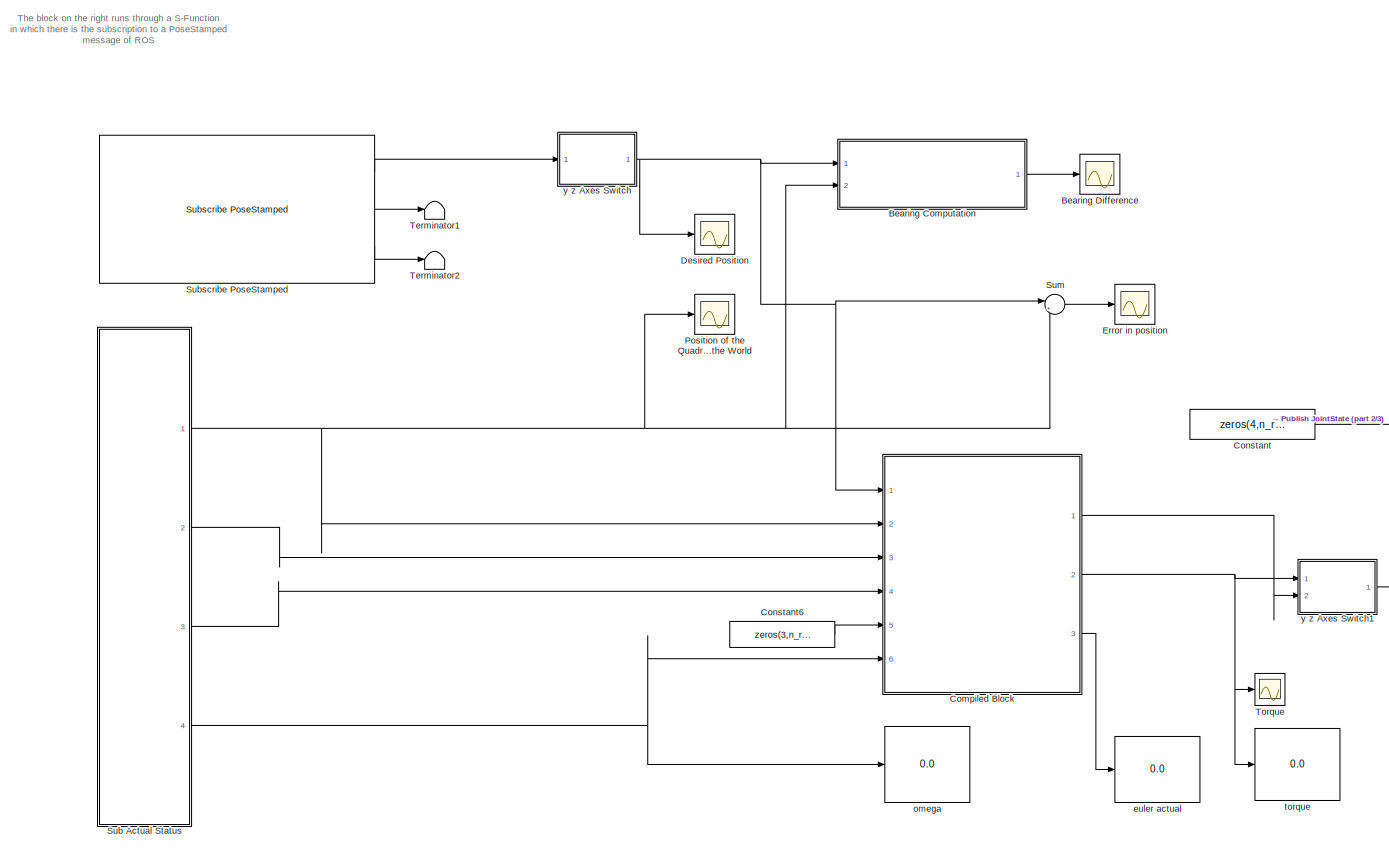
[diagram: root canvas - part 1/3, most of the canvas]
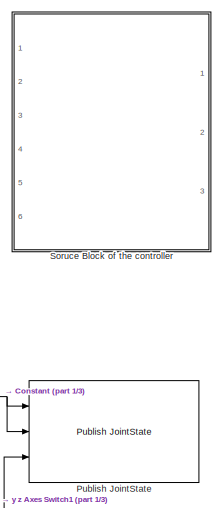
[diagram: root canvas - part 2/3, top right region]
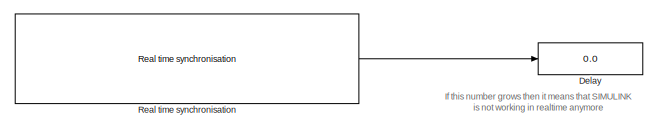
[diagram: root canvas - part 3/3, bottom left region]
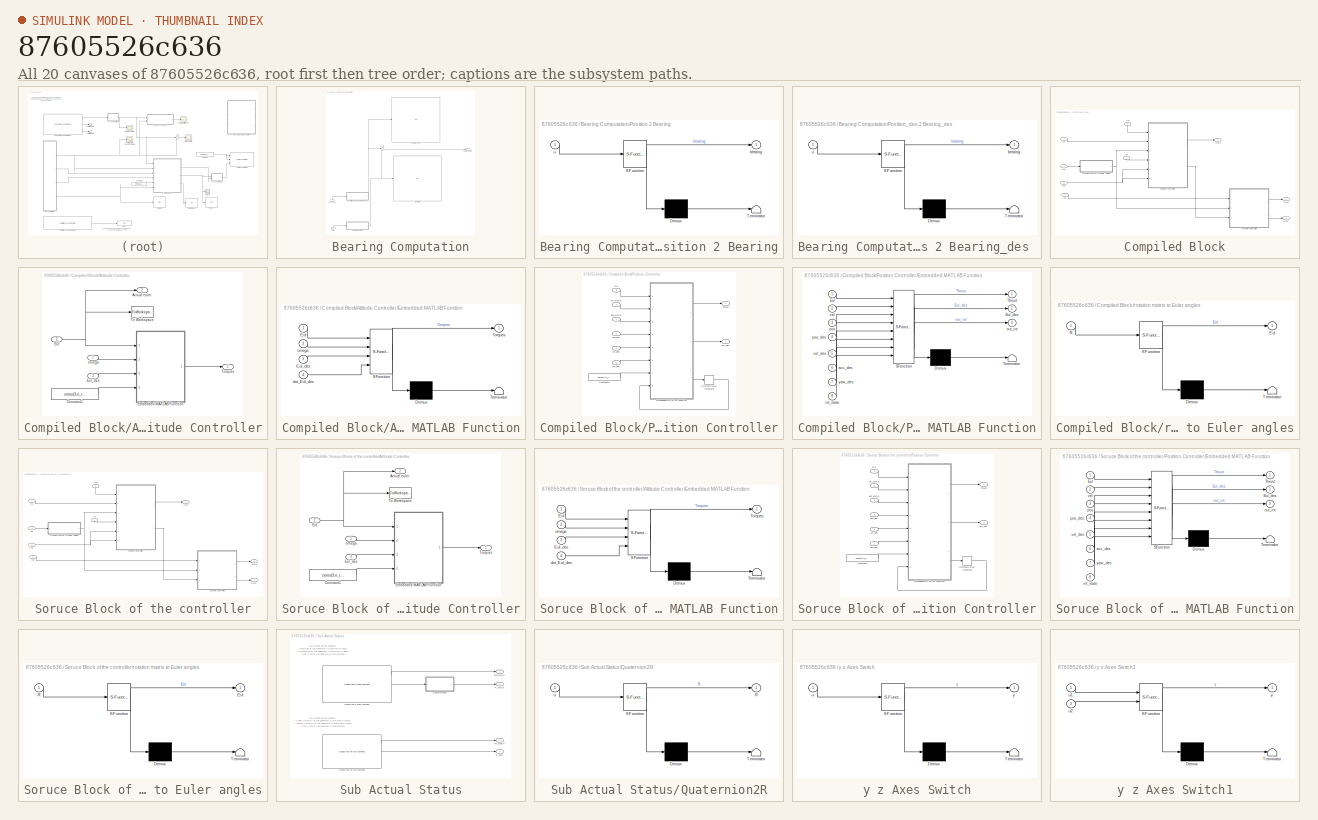
[diagram: thumbnail index - all 20 canvases of the model, root first then tree order]
MODEL slx_87605526c636
KIND model
BLOCK [SubSystem] Bearing Computation
  Ports = [2, 1]
  RequestExecContextInheritance = off
BLOCK [Display] Bearing Computation/Bearing
  Decimation = 1
  Ports = [1]
BLOCK [Outport] Bearing Computation/Bearing_Error
  IconDisplay = Port number
BLOCK [Display] Bearing Computation/Bearing_des 
  Decimation = 1
  Ports = [1]
BLOCK [Inport] Bearing Computation/Pos
  IconDisplay = Port number
  Port = 2
BLOCK [Inport] Bearing Computation/Pos_des
  IconDisplay = Port number
BLOCK [SubSystem] Bearing Computation/Position 2 Bearing
  ErrorFcn = Stateflow.Translate.translate
  PermitHierarchicalResolution = ExplicitOnly
  Ports = [1, 1]
  RequestExecContextInheritance = off
  SFBlockType = MATLAB Function
  TreatAsAtomicUnit = on
BLOCK [Demux] Bearing Computation/Position 2 Bearing/ Demux 
  Outputs = 1
  Ports = [1, 1]
BLOCK [S-Function] Bearing Computation/Position 2 Bearing/ SFunction 
  EnableBusSupport = on
  FunctionName = sf_sfun
  Parameters = n_robots
  PortCounts = [1 2]
  Ports = [1, 2]
  Tag = Stateflow S-Function test_pos_ctrl_target 11
BLOCK [Terminator] Bearing Computation/Position 2 Bearing/ Terminator 
BLOCK [Outport] Bearing Computation/Position 2 Bearing/bearing
  IconDisplay = Port number
BLOCK [Inport] Bearing Computation/Position 2 Bearing/u
  IconDisplay = Port number
BLOCK [SubSystem] Bearing Computation/Position_des 2 Bearing_des 
  ErrorFcn = Stateflow.Translate.translate
  PermitHierarchicalResolution = ExplicitOnly
  Ports = [1, 1]
  RequestExecContextInheritance = off
  SFBlockType = MATLAB Function
  TreatAsAtomicUnit = on
BLOCK [Demux] Bearing Computation/Position_des 2 Bearing_des / Demux 
  Outputs = 1
  Ports = [1, 1]
BLOCK [S-Function] Bearing Computation/Position_des 2 Bearing_des / SFunction 
  EnableBusSupport = on
  FunctionName = sf_sfun
  Parameters = n_robots
  PortCounts = [1 2]
  Ports = [1, 2]
  Tag = Stateflow S-Function test_pos_ctrl_target 10
BLOCK [Terminator] Bearing Computation/Position_des 2 Bearing_des / Terminator 
BLOCK [Outport] Bearing Computation/Position_des 2 Bearing_des /bearing
  IconDisplay = Port number
BLOCK [Inport] Bearing Computation/Position_des 2 Bearing_des /u
  IconDisplay = Port number
BLOCK [Sum] Bearing Computation/Sum1
  IconShape = round
  InputSameDT = off
  Inputs = |+-
  OutDataTypeStr = Inherit: Inherit via internal rule
  Ports = [2, 1]
  SaturateOnIntegerOverflow = off
BLOCK [Scope] Bearing Difference
  DataFormat = StructureWithTime
  Floating = off
  LimitDataPoints = off
  NumInputPorts = 1
  Ports = [1]
  SampleTime = 0
  SaveName = ScopeData4
  ShowLegends = off
  TimeRange = 10000
  YMax = 0.8
  YMin = -0.8
  ZoomMode = xonly
BLOCK [SubSystem] Compiled Block
  Ports = [6, 3]
  RequestExecContextInheritance = off
BLOCK [SubSystem] Compiled Block/Attitude Controller
  Ports = [3, 2]
  RequestExecContextInheritance = off
  SystemSampleTime = IMU_time_step
BLOCK [Outport] Compiled Block/Attitude Controller/Actual euler
  IconDisplay = Port number
  Port = 2
BLOCK [Constant] Compiled Block/Attitude Controller/Constant1
  Value = zeros(3,n_robots)
BLOCK [SubSystem] Compiled Block/Attitude Controller/Embedded MATLAB Function
  ErrorFcn = Stateflow.Translate.translate
  PermitHierarchicalResolution = ExplicitOnly
  Ports = [4, 1]
  RequestExecContextInheritance = off
  SFBlockType = MATLAB Function
  TreatAsAtomicUnit = on
BLOCK [Demux] Compiled Block/Attitude Controller/Embedded MATLAB Function/ Demux 
  Outputs = 1
  Ports = [1, 1]
BLOCK [S-Function] Compiled Block/Attitude Controller/Embedded MATLAB Function/ SFunction 
  EnableBusSupport = on
  FunctionName = sf_sfun
  Parameters = KDP,KDR,KDY,KPP,KPR,KPY,n_robots
  PortCounts = [4 2]
  Ports = [4, 2]
  Tag = Stateflow S-Function test_pos_ctrl_target 5
BLOCK [Terminator] Compiled Block/Attitude Controller/Embedded MATLAB Function/ Terminator 
BLOCK [Inport] Compiled Block/Attitude Controller/Embedded MATLAB Function/Eul
  IconDisplay = Port number
BLOCK [Inport] Compiled Block/Attitude Controller/Embedded MATLAB Function/Eul_des
  IconDisplay = Port number
  Port = 3
BLOCK [Outport] Compiled Block/Attitude Controller/Embedded MATLAB Function/Torques
  IconDisplay = Port number
BLOCK [Inport] Compiled Block/Attitude Controller/Embedded MATLAB Function/dot_Eul_des
  IconDisplay = Port number
  Port = 4
BLOCK [Inport] Compiled Block/Attitude Controller/Embedded MATLAB Function/omega
  IconDisplay = Port number
  Port = 2
BLOCK [Inport] Compiled Block/Attitude Controller/Eul
  IconDisplay = Port number
  Port = 2
BLOCK [Inport] Compiled Block/Attitude Controller/Eul_des
  IconDisplay = Port number
  Port = 3
BLOCK [ToWorkspace] Compiled Block/Attitude Controller/To Workspace
  Commented = on
  MaxDataPoints = inf
  Ports = [1]
  SampleTime = -1
  SaveFormat = Structure With Time
  VariableName = Eul
BLOCK [Outport] Compiled Block/Attitude Controller/Torques
  IconDisplay = Port number
BLOCK [Inport] Compiled Block/Attitude Controller/omega
  IconDisplay = Port number
BLOCK [Inport] Compiled Block/In1
  IconDisplay = Port number
BLOCK [Inport] Compiled Block/In2
  IconDisplay = Port number
  Port = 2
BLOCK [Inport] Compiled Block/In3
  IconDisplay = Port number
  Port = 3
BLOCK [Inport] Compiled Block/In4
  IconDisplay = Port number
  Port = 4
BLOCK [Inport] Compiled Block/In5
  IconDisplay = Port number
  Port = 5
BLOCK [Inport] Compiled Block/In6
  IconDisplay = Port number
  Port = 6
BLOCK [Outport] Compiled Block/Out1
  IconDisplay = Port number
BLOCK [Outport] Compiled Block/Out2
  IconDisplay = Port number
  Port = 2
BLOCK [Outport] Compiled Block/Out3
  IconDisplay = Port number
  Port = 3
BLOCK [SubSystem] Compiled Block/Position Controller
  Ports = [6, 2]
  RequestExecContextInheritance = off
  SystemSampleTime = VICON_time_step
BLOCK [Constant] Compiled Block/Position Controller/Constant3
  Value = zeros(1,n_robots)
BLOCK [DiscreteIntegrator] Compiled Block/Position Controller/Discrete-Time Integrator
  ICPrevOutput = DiscIntNeverNeededParam
  ICPrevScaledInput = DiscIntNeverNeededParam
  InitialCondition = zeros(3,n_robots)
  OutDataTypeStr = Inherit: Inherit via back propagation
  Ports = [1, 1]
  SampleTime = -1
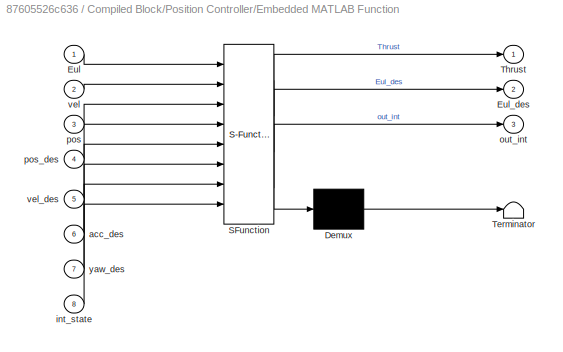
BLOCK [SubSystem] Compiled Block/Position Controller/Embedded MATLAB Function
  ErrorFcn = Stateflow.Translate.translate
  PermitHierarchicalResolution = ExplicitOnly
  Ports = [8, 3]
  RequestExecContextInheritance = off
  SFBlockType = MATLAB Function
  TreatAsAtomicUnit = on
BLOCK [Demux] Compiled Block/Position Controller/Embedded MATLAB Function/ Demux 
  Outputs = 1
  Ports = [1, 1]
BLOCK [S-Function] Compiled Block/Position Controller/Embedded MATLAB Function/ SFunction 
  EnableBusSupport = on
  FunctionName = sf_sfun
  Parameters = g,kd,ki,kp,m0,max_pitch,max_roll,n_robots
  PortCounts = [8 4]
  Ports = [8, 4]
  Tag = Stateflow S-Function test_pos_ctrl_target 8
BLOCK [Terminator] Compiled Block/Position Controller/Embedded MATLAB Function/ Terminator 
BLOCK [Inport] Compiled Block/Position Controller/Embedded MATLAB Function/Eul
  IconDisplay = Port number
BLOCK [Outport] Compiled Block/Position Controller/Embedded MATLAB Function/Eul_des
  IconDisplay = Port number
  Port = 2
BLOCK [Outport] Compiled Block/Position Controller/Embedded MATLAB Function/Thrust
  IconDisplay = Port number
BLOCK [Inport] Compiled Block/Position Controller/Embedded MATLAB Function/acc_des
  IconDisplay = Port number
  Port = 6
BLOCK [Inport] Compiled Block/Position Controller/Embedded MATLAB Function/int_state
  IconDisplay = Port number
  Port = 8
BLOCK [Outport] Compiled Block/Position Controller/Embedded MATLAB Function/out_int
  IconDisplay = Port number
  Port = 3
BLOCK [Inport] Compiled Block/Position Controller/Embedded MATLAB Function/pos
  IconDisplay = Port number
  Port = 3
BLOCK [Inport] Compiled Block/Position Controller/Embedded MATLAB Function/pos_des
  IconDisplay = Port number
  Port = 4
BLOCK [Inport] Compiled Block/Position Controller/Embedded MATLAB Function/vel
  IconDisplay = Port number
  Port = 2
BLOCK [Inport] Compiled Block/Position Controller/Embedded MATLAB Function/vel_des
  IconDisplay = Port number
  Port = 5
BLOCK [Inport] Compiled Block/Position Controller/Embedded MATLAB Function/yaw_des
  IconDisplay = Port number
  Port = 7
BLOCK [Inport] Compiled Block/Position Controller/Eul
  IconDisplay = Port number
  Port = 3
BLOCK [Outport] Compiled Block/Position Controller/Thrust
  IconDisplay = Port number
BLOCK [Inport] Compiled Block/Position Controller/acc_des
  IconDisplay = Port number
  Port = 6
BLOCK [Outport] Compiled Block/Position Controller/eul_des
  IconDisplay = Port number
  Port = 2
BLOCK [Inport] Compiled Block/Position Controller/pos_des
  IconDisplay = Port number
  Port = 4
BLOCK [Inport] Compiled Block/Position Controller/pos_world
  IconDisplay = Port number
BLOCK [Inport] Compiled Block/Position Controller/vel_des
  IconDisplay = Port number
  Port = 5
BLOCK [Inport] Compiled Block/Position Controller/vel_world
  IconDisplay = Port number
  Port = 2
BLOCK [SubSystem] Compiled Block/rotation matrix to Euler angles
  ErrorFcn = Stateflow.Translate.translate
  PermitHierarchicalResolution = ExplicitOnly
  Ports = [1, 1]
  RequestExecContextInheritance = off
  SFBlockType = MATLAB Function
  TreatAsAtomicUnit = on
BLOCK [Demux] Compiled Block/rotation matrix to Euler angles/ Demux 
  Outputs = 1
  Ports = [1, 1]
BLOCK [S-Function] Compiled Block/rotation matrix to Euler angles/ SFunction 
  EnableBusSupport = on
  FunctionName = sf_sfun
  Parameters = n_robots
  PortCounts = [1 2]
  Ports = [1, 2]
  Tag = Stateflow S-Function test_pos_ctrl_target 9
BLOCK [Terminator] Compiled Block/rotation matrix to Euler angles/ Terminator 
BLOCK [Outport] Compiled Block/rotation matrix to Euler angles/Eul
  IconDisplay = Port number
BLOCK [Inport] Compiled Block/rotation matrix to Euler angles/R
  IconDisplay = Port number
BLOCK [Constant] Constant
  Value = zeros(4,n_robots)
  VectorParams1D = off
BLOCK [Constant] Constant6
  Value = zeros(3,n_robots)
BLOCK [Display] Delay
  Decimation = 1
  Ports = [1]
BLOCK [Scope] Desired Position
  DataFormat = StructureWithTime
  Floating = off
  LimitDataPoints = off
  NumInputPorts = 1
  Ports = [1]
  SampleTime = 0
  SaveName = ScopeData3
  ShowLegends = off
  TimeRange = 10000
  YMax = 7.5
  YMin = -4
  ZoomMode = xonly
BLOCK [Scope] Error in position
  Commented = on
  DataFormat = StructureWithTime
  Floating = off
  NumInputPorts = 1
  Ports = [1]
  SampleTime = 0
  SaveToWorkspace = on
  ShowLegends = off
  TimeRange = 10
  YMax = 7.5
  YMin = -4
  ZoomMode = xonly
BLOCK [Scope] Position of the Quadrotor in the World 
  DataFormat = StructureWithTime
  Floating = off
  NumInputPorts = 1
  Ports = [1]
  SampleTime = 0
  SaveName = ScopeData2
  SaveToWorkspace = on
  ShowLegends = off
  TimeRange = 10
  YMax = 7.5
  YMin = -4
  ZoomMode = xonly
BLOCK [Reference] Publish JointState  REF=sensor_msgs/Publish JointState
  Ports = [3]
  SourceBlock = sensor_msgs/Publish JointState
  SourceType = Publisher JointState
  list_of_robot_ids = char([0:n_robots-1])
  n_dofs = char(4)
  stepTime = basic_time_step
  topic_postfix = ''
  topic_prefix = '/command/quadrotor_'
BLOCK [Reference] Real time synchronisation  REF=rt_sync/Real time synchronisation
  Ports = [0, 1]
  ShowEveryNumCycles = 1/basic_time_step
  SourceBlock = rt_sync/Real time synchronisation
  minShownDelay = 0.5
  slowDownFactor = 1
  stepTime = basic_time_step
BLOCK [SubSystem] Soruce Block of the controller
  Commented = on
  Ports = [6, 3]
  RequestExecContextInheritance = off
BLOCK [SubSystem] Soruce Block of the controller/Attitude Controller
  Ports = [3, 2]
  RequestExecContextInheritance = off
  SystemSampleTime = IMU_time_step
BLOCK [Outport] Soruce Block of the controller/Attitude Controller/Actual euler
  IconDisplay = Port number
  Port = 2
BLOCK [Constant] Soruce Block of the controller/Attitude Controller/Constant1
  Value = zeros(3,n_robots)
BLOCK [SubSystem] Soruce Block of the controller/Attitude Controller/Embedded MATLAB Function
  ErrorFcn = Stateflow.Translate.translate
  PermitHierarchicalResolution = ExplicitOnly
  Ports = [4, 1]
  RequestExecContextInheritance = off
  SFBlockType = MATLAB Function
  TreatAsAtomicUnit = on
BLOCK [Demux] Soruce Block of the controller/Attitude Controller/Embedded MATLAB Function/ Demux 
  Outputs = 1
  Ports = [1, 1]
BLOCK [S-Function] Soruce Block of the controller/Attitude Controller/Embedded MATLAB Function/ SFunction 
  EnableBusSupport = on
  FunctionName = sf_sfun
  Parameters = KDP,KDR,KDY,KPP,KPR,KPY,n_robots
  PortCounts = [4 2]
  Ports = [4, 2]
  Tag = Stateflow S-Function test_pos_ctrl_target 1
BLOCK [Terminator] Soruce Block of the controller/Attitude Controller/Embedded MATLAB Function/ Terminator 
BLOCK [Inport] Soruce Block of the controller/Attitude Controller/Embedded MATLAB Function/Eul
  IconDisplay = Port number
BLOCK [Inport] Soruce Block of the controller/Attitude Controller/Embedded MATLAB Function/Eul_des
  IconDisplay = Port number
  Port = 3
BLOCK [Outport] Soruce Block of the controller/Attitude Controller/Embedded MATLAB Function/Torques
  IconDisplay = Port number
BLOCK [Inport] Soruce Block of the controller/Attitude Controller/Embedded MATLAB Function/dot_Eul_des
  IconDisplay = Port number
  Port = 4
BLOCK [Inport] Soruce Block of the controller/Attitude Controller/Embedded MATLAB Function/omega
  IconDisplay = Port number
  Port = 2
BLOCK [Inport] Soruce Block of the controller/Attitude Controller/Eul
  IconDisplay = Port number
  Port = 2
BLOCK [Inport] Soruce Block of the controller/Attitude Controller/Eul_des
  IconDisplay = Port number
  Port = 3
BLOCK [ToWorkspace] Soruce Block of the controller/Attitude Controller/To Workspace
  MaxDataPoints = inf
  Ports = [1]
  SampleTime = -1
  SaveFormat = Structure With Time
  VariableName = Eul
BLOCK [Outport] Soruce Block of the controller/Attitude Controller/Torques
  IconDisplay = Port number
BLOCK [Inport] Soruce Block of the controller/Attitude Controller/omega
  IconDisplay = Port number
BLOCK [Inport] Soruce Block of the controller/In1
  IconDisplay = Port number
BLOCK [Inport] Soruce Block of the controller/In2
  IconDisplay = Port number
  Port = 2
BLOCK [Inport] Soruce Block of the controller/In3
  IconDisplay = Port number
  Port = 3
BLOCK [Inport] Soruce Block of the controller/In4
  IconDisplay = Port number
  Port = 4
BLOCK [Inport] Soruce Block of the controller/In5
  IconDisplay = Port number
  Port = 5
BLOCK [Inport] Soruce Block of the controller/In6
  IconDisplay = Port number
  Port = 6
BLOCK [Outport] Soruce Block of the controller/Out1
  IconDisplay = Port number
BLOCK [Outport] Soruce Block of the controller/Out2
  IconDisplay = Port number
  Port = 2
BLOCK [Outport] Soruce Block of the controller/Out3
  IconDisplay = Port number
  Port = 3
BLOCK [SubSystem] Soruce Block of the controller/Position Controller
  Ports = [6, 2]
  RequestExecContextInheritance = off
  SystemSampleTime = VICON_time_step
BLOCK [Constant] Soruce Block of the controller/Position Controller/Constant3
  Value = zeros(1,n_robots)
BLOCK [DiscreteIntegrator] Soruce Block of the controller/Position Controller/Discrete-Time Integrator
  ICPrevOutput = DiscIntNeverNeededParam
  ICPrevScaledInput = DiscIntNeverNeededParam
  InitialCondition = zeros(3,n_robots)
  OutDataTypeStr = Inherit: Inherit via back propagation
  Ports = [1, 1]
  SampleTime = -1
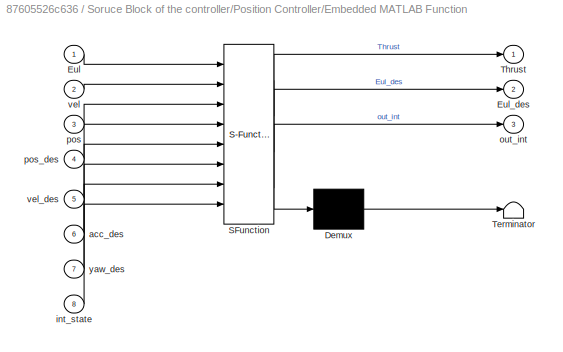
BLOCK [SubSystem] Soruce Block of the controller/Position Controller/Embedded MATLAB Function
  ErrorFcn = Stateflow.Translate.translate
  PermitHierarchicalResolution = ExplicitOnly
  Ports = [8, 3]
  RequestExecContextInheritance = off
  SFBlockType = MATLAB Function
  TreatAsAtomicUnit = on
BLOCK [Demux] Soruce Block of the controller/Position Controller/Embedded MATLAB Function/ Demux 
  Outputs = 1
  Ports = [1, 1]
BLOCK [S-Function] Soruce Block of the controller/Position Controller/Embedded MATLAB Function/ SFunction 
  EnableBusSupport = on
  FunctionName = sf_sfun
  Parameters = g,kd,ki,kp,m0,max_pitch,max_roll,n_robots
  PortCounts = [8 4]
  Ports = [8, 4]
  Tag = Stateflow S-Function test_pos_ctrl_target 3
BLOCK [Terminator] Soruce Block of the controller/Position Controller/Embedded MATLAB Function/ Terminator 
BLOCK [Inport] Soruce Block of the controller/Position Controller/Embedded MATLAB Function/Eul
  IconDisplay = Port number
BLOCK [Outport] Soruce Block of the controller/Position Controller/Embedded MATLAB Function/Eul_des
  IconDisplay = Port number
  Port = 2
BLOCK [Outport] Soruce Block of the controller/Position Controller/Embedded MATLAB Function/Thrust
  IconDisplay = Port number
BLOCK [Inport] Soruce Block of the controller/Position Controller/Embedded MATLAB Function/acc_des
  IconDisplay = Port number
  Port = 6
BLOCK [Inport] Soruce Block of the controller/Position Controller/Embedded MATLAB Function/int_state
  IconDisplay = Port number
  Port = 8
BLOCK [Outport] Soruce Block of the controller/Position Controller/Embedded MATLAB Function/out_int
  IconDisplay = Port number
  Port = 3
BLOCK [Inport] Soruce Block of the controller/Position Controller/Embedded MATLAB Function/pos
  IconDisplay = Port number
  Port = 3
BLOCK [Inport] Soruce Block of the controller/Position Controller/Embedded MATLAB Function/pos_des
  IconDisplay = Port number
  Port = 4
BLOCK [Inport] Soruce Block of the controller/Position Controller/Embedded MATLAB Function/vel
  IconDisplay = Port number
  Port = 2
BLOCK [Inport] Soruce Block of the controller/Position Controller/Embedded MATLAB Function/vel_des
  IconDisplay = Port number
  Port = 5
BLOCK [Inport] Soruce Block of the controller/Position Controller/Embedded MATLAB Function/yaw_des
  IconDisplay = Port number
  Port = 7
BLOCK [Inport] Soruce Block of the controller/Position Controller/Eul
  IconDisplay = Port number
  Port = 3
BLOCK [Outport] Soruce Block of the controller/Position Controller/Thrust
  IconDisplay = Port number
BLOCK [Inport] Soruce Block of the controller/Position Controller/acc_des
  IconDisplay = Port number
  Port = 6
BLOCK [Outport] Soruce Block of the controller/Position Controller/eul_des
  IconDisplay = Port number
  Port = 2
BLOCK [Inport] Soruce Block of the controller/Position Controller/pos_des
  IconDisplay = Port number
  Port = 4
BLOCK [Inport] Soruce Block of the controller/Position Controller/pos_world
  IconDisplay = Port number
BLOCK [Inport] Soruce Block of the controller/Position Controller/vel_des
  IconDisplay = Port number
  Port = 5
BLOCK [Inport] Soruce Block of the controller/Position Controller/vel_world
  IconDisplay = Port number
  Port = 2
BLOCK [SubSystem] Soruce Block of the controller/rotation matrix to Euler angles
  ErrorFcn = Stateflow.Translate.translate
  PermitHierarchicalResolution = ExplicitOnly
  Ports = [1, 1]
  RequestExecContextInheritance = off
  SFBlockType = MATLAB Function
  TreatAsAtomicUnit = on
BLOCK [Demux] Soruce Block of the controller/rotation matrix to Euler angles/ Demux 
  Outputs = 1
  Ports = [1, 1]
BLOCK [S-Function] Soruce Block of the controller/rotation matrix to Euler angles/ SFunction 
  EnableBusSupport = on
  FunctionName = sf_sfun
  Parameters = n_robots
  PortCounts = [1 2]
  Ports = [1, 2]
  Tag = Stateflow S-Function test_pos_ctrl_target 4
BLOCK [Terminator] Soruce Block of the controller/rotation matrix to Euler angles/ Terminator 
BLOCK [Outport] Soruce Block of the controller/rotation matrix to Euler angles/Eul
  IconDisplay = Port number
BLOCK [Inport] Soruce Block of the controller/rotation matrix to Euler angles/R
  IconDisplay = Port number
BLOCK [SubSystem] Sub Actual Status
  Ports = [0, 4]
  RequestExecContextInheritance = off
BLOCK [SubSystem] Sub Actual Status/Quaternion2R
  ErrorFcn = Stateflow.Translate.translate
  PermitHierarchicalResolution = ExplicitOnly
  Ports = [1, 1]
  RequestExecContextInheritance = off
  SFBlockType = MATLAB Function
  TreatAsAtomicUnit = on
BLOCK [Demux] Sub Actual Status/Quaternion2R/ Demux 
  Outputs = 1
  Ports = [1, 1]
BLOCK [S-Function] Sub Actual Status/Quaternion2R/ SFunction 
  EnableBusSupport = on
  FunctionName = sf_sfun
  Parameters = n_robots
  PortCounts = [1 2]
  Ports = [1, 2]
  Tag = Stateflow S-Function test_pos_ctrl_target 2
BLOCK [Terminator] Sub Actual Status/Quaternion2R/ Terminator 
BLOCK [Outport] Sub Actual Status/Quaternion2R/R
  IconDisplay = Port number
BLOCK [Inport] Sub Actual Status/Quaternion2R/u
  IconDisplay = Port number
BLOCK [Outport] Sub Actual Status/R_world 
  IconDisplay = Port number
  Port = 3
BLOCK [Reference] Sub Actual Status/Subscribe PoseStamped  REF=geometry_msgs/Subscribe PoseStamped
  Ports = [0, 3]
  SourceBlock = geometry_msgs/Subscribe PoseStamped
  SourceType = Subscriber PoseStamped
  list_of_robot_ids = char([0:n_robots-1])
  stepTime = basic_time_step
  topic_postfix = ''
  topic_prefix = '/vrep/pose/quadrotor_'
BLOCK [Reference] Sub Actual Status/Subscribe TwistStamped  REF=geometry_msgs/Subscribe TwistStamped
  Ports = [0, 3]
  SourceBlock = geometry_msgs/Subscribe TwistStamped
  SourceType = Subscriber TwistStamped
  list_of_robot_ids = char([0:n_robots-1])
  stepTime = basic_time_step
  topic_postfix = ''
  topic_prefix = '/vrep/twist/quadrotor_'
BLOCK [Outport] Sub Actual Status/pos_world
  IconDisplay = Port number
BLOCK [Outport] Sub Actual Status/vel_world
  IconDisplay = Port number
  Port = 2
BLOCK [Outport] Sub Actual Status/w_body
  IconDisplay = Port number
  Port = 4
BLOCK [Reference] Subscribe PoseStamped  REF=geometry_msgs/Subscribe PoseStamped
  Ports = [0, 3]
  SourceBlock = geometry_msgs/Subscribe PoseStamped
  SourceType = Subscriber PoseStamped
  list_of_robot_ids = char([0:n_robots-1])
  stepTime = basic_time_step
  topic_postfix = '/pose'
  topic_prefix = '/vrep/Quadricopter_target_'
BLOCK [Sum] Sum
  Commented = on
  IconShape = round
  InputSameDT = off
  Inputs = |+-
  OutDataTypeStr = Inherit: Inherit via internal rule
  Ports = [2, 1]
  SaturateOnIntegerOverflow = off
BLOCK [Terminator] Terminator1
BLOCK [Terminator] Terminator2
BLOCK [Scope] Torque
  DataFormat = StructureWithTime
  Floating = off
  NumInputPorts = 1
  Ports = [1]
  SampleTime = 0
  SaveName = ScopeData1
  ShowLegends = off
BLOCK [Display] euler actual
  Commented = on
  Decimation = 1
  Ports = [1]
BLOCK [Display] omega
  Commented = on
  Decimation = 1
  Ports = [1]
BLOCK [Display] torque 
  Commented = on
  Decimation = 1
  Ports = [1]
BLOCK [SubSystem] y z Axes Switch
  ErrorFcn = Stateflow.Translate.translate
  PermitHierarchicalResolution = ExplicitOnly
  Ports = [1, 1]
  RequestExecContextInheritance = off
  SFBlockType = MATLAB Function
  TreatAsAtomicUnit = on
BLOCK [Demux] y z Axes Switch/ Demux 
  Outputs = 1
  Ports = [1, 1]
BLOCK [S-Function] y z Axes Switch/ SFunction 
  EnableBusSupport = on
  FunctionName = sf_sfun
  Parameters = n_robots
  PortCounts = [1 2]
  Ports = [1, 2]
  Tag = Stateflow S-Function test_pos_ctrl_target 6
BLOCK [Terminator] y z Axes Switch/ Terminator 
BLOCK [Inport] y z Axes Switch/u
  IconDisplay = Port number
BLOCK [Outport] y z Axes Switch/y
  IconDisplay = Port number
BLOCK [SubSystem] y z Axes Switch1
  ErrorFcn = Stateflow.Translate.translate
  PermitHierarchicalResolution = ExplicitOnly
  Ports = [2, 1]
  RequestExecContextInheritance = off
  SFBlockType = MATLAB Function
  TreatAsAtomicUnit = on
BLOCK [Demux] y z Axes Switch1/ Demux 
  Outputs = 1
  Ports = [1, 1]
BLOCK [S-Function] y z Axes Switch1/ SFunction 
  EnableBusSupport = on
  FunctionName = sf_sfun
  Parameters = n_robots
  PortCounts = [2 2]
  Ports = [2, 2]
  Tag = Stateflow S-Function test_pos_ctrl_target 7
BLOCK [Terminator] y z Axes Switch1/ Terminator 
BLOCK [Inport] y z Axes Switch1/u1
  IconDisplay = Port number
BLOCK [Inport] y z Axes Switch1/u2
  IconDisplay = Port number
  Port = 2
BLOCK [Outport] y z Axes Switch1/y
  IconDisplay = Port number
ANNOTATION (root): If this number grows then it means that SIMULINK is not working in realtime anymore
ANNOTATION (root): The block on the right runs through a S-Function in which there is the subscription to a PoseStamped message of ROS
ANNOTATION Sub Actual Status: This blocks has as outputs: - Linear Velocity of the quadrotor in the world frame - Angular Velocity of the quadrotor in the world frame - Sent time of the previous 2 informations
ANNOTATION Sub Actual Status: This blocks has as outputs: - Position of the quadrotor in the world frame - Orientation of the quadrotor in the world frame - Sent time of the previous 2 informations
LINE Bearing Computation/Pos:1 -> Bearing Computation/Position 2 Bearing:1
LINE Bearing Computation/Pos_des:1 -> Bearing Computation/Position_des 2 Bearing_des :1
NET Bearing Computation/Position 2 Bearing:1 -> Bearing Computation/Bearing:1, Bearing Computation/Sum1:2
NET Bearing Computation/Position_des 2 Bearing_des :1 -> Bearing Computation/Bearing_des :1, Bearing Computation/Sum1:1
LINE Bearing Computation/Sum1:1 -> Bearing Computation/Bearing_Error:1
LINE Bearing Computation:1 -> Bearing Difference:1
LINE Compiled Block/Attitude Controller/Constant1:1 -> Compiled Block/Attitude Controller/Embedded MATLAB Function:4
LINE Compiled Block/Attitude Controller/Embedded MATLAB Function:1 -> Compiled Block/Attitude Controller/Torques:1
NET Compiled Block/Attitude Controller/Eul:1 -> Compiled Block/Attitude Controller/Actual euler:1, Compiled Block/Attitude Controller/Embedded MATLAB Function:1, Compiled Block/Attitude Controller/To Workspace:1
LINE Compiled Block/Attitude Controller/Eul_des:1 -> Compiled Block/Attitude Controller/Embedded MATLAB Function:3
LINE Compiled Block/Attitude Controller/omega:1 -> Compiled Block/Attitude Controller/Embedded MATLAB Function:2
LINE Compiled Block/Attitude Controller:1 -> Compiled Block/Out2:1
LINE Compiled Block/Attitude Controller:2 -> Compiled Block/Out3:1
LINE Compiled Block/In1:1 -> Compiled Block/Position Controller:4
LINE Compiled Block/In2:1 -> Compiled Block/Position Controller:1
LINE Compiled Block/In3:1 -> Compiled Block/Position Controller:2
LINE Compiled Block/In4:1 -> Compiled Block/rotation matrix to Euler angles:1
NET Compiled Block/In5:1 -> Compiled Block/Position Controller:5, Compiled Block/Position Controller:6
LINE Compiled Block/In6:1 -> Compiled Block/Attitude Controller:1
LINE Compiled Block/Position Controller/Constant3:1 -> Compiled Block/Position Controller/Embedded MATLAB Function:7
LINE Compiled Block/Position Controller/Discrete-Time Integrator:1 -> Compiled Block/Position Controller/Embedded MATLAB Function:8
LINE Compiled Block/Position Controller/Embedded MATLAB Function:1 -> Compiled Block/Position Controller/Thrust:1
LINE Compiled Block/Position Controller/Embedded MATLAB Function:2 -> Compiled Block/Position Controller/eul_des:1
LINE Compiled Block/Position Controller/Embedded MATLAB Function:3 -> Compiled Block/Position Controller/Discrete-Time Integrator:1
LINE Compiled Block/Position Controller/Eul:1 -> Compiled Block/Position Controller/Embedded MATLAB Function:1
LINE Compiled Block/Position Controller/acc_des:1 -> Compiled Block/Position Controller/Embedded MATLAB Function:6
LINE Compiled Block/Position Controller/pos_des:1 -> Compiled Block/Position Controller/Embedded MATLAB Function:4
LINE Compiled Block/Position Controller/pos_world:1 -> Compiled Block/Position Controller/Embedded MATLAB Function:3
LINE Compiled Block/Position Controller/vel_des:1 -> Compiled Block/Position Controller/Embedded MATLAB Function:5
LINE Compiled Block/Position Controller/vel_world:1 -> Compiled Block/Position Controller/Embedded MATLAB Function:2
LINE Compiled Block/Position Controller:1 -> Compiled Block/Out1:1
LINE Compiled Block/Position Controller:2 -> Compiled Block/Attitude Controller:3
NET Compiled Block/rotation matrix to Euler angles:1 -> Compiled Block/Attitude Controller:2, Compiled Block/Position Controller:3
LINE Compiled Block:1 -> y z Axes Switch1:2
NET Compiled Block:2 -> Torque:1, torque :1, y z Axes Switch1:1
LINE Compiled Block:3 -> euler actual:1
LINE Constant6:1 -> Compiled Block:5
NET Constant:1 -> Publish JointState:1, Publish JointState:2
LINE Real time synchronisation:1 -> Delay:1
LINE Soruce Block of the controller/Attitude Controller/Constant1:1 -> Soruce Block of the controller/Attitude Controller/Embedded MATLAB Function:4
LINE Soruce Block of the controller/Attitude Controller/Embedded MATLAB Function:1 -> Soruce Block of the controller/Attitude Controller/Torques:1
NET Soruce Block of the controller/Attitude Controller/Eul:1 -> Soruce Block of the controller/Attitude Controller/Actual euler:1, Soruce Block of the controller/Attitude Controller/Embedded MATLAB Function:1, Soruce Block of the controller/Attitude Controller/To Workspace:1
LINE Soruce Block of the controller/Attitude Controller/Eul_des:1 -> Soruce Block of the controller/Attitude Controller/Embedded MATLAB Function:3
LINE Soruce Block of the controller/Attitude Controller/omega:1 -> Soruce Block of the controller/Attitude Controller/Embedded MATLAB Function:2
LINE Soruce Block of the controller/Attitude Controller:1 -> Soruce Block of the controller/Out2:1
LINE Soruce Block of the controller/Attitude Controller:2 -> Soruce Block of the controller/Out3:1
LINE Soruce Block of the controller/In1:1 -> Soruce Block of the controller/Position Controller:4
LINE Soruce Block of the controller/In2:1 -> Soruce Block of the controller/Position Controller:1
LINE Soruce Block of the controller/In3:1 -> Soruce Block of the controller/Position Controller:2
LINE Soruce Block of the controller/In4:1 -> Soruce Block of the controller/rotation matrix to Euler angles:1
NET Soruce Block of the controller/In5:1 -> Soruce Block of the controller/Position Controller:5, Soruce Block of the controller/Position Controller:6
LINE Soruce Block of the controller/In6:1 -> Soruce Block of the controller/Attitude Controller:1
LINE Soruce Block of the controller/Position Controller/Constant3:1 -> Soruce Block of the controller/Position Controller/Embedded MATLAB Function:7
LINE Soruce Block of the controller/Position Controller/Discrete-Time Integrator:1 -> Soruce Block of the controller/Position Controller/Embedded MATLAB Function:8
LINE Soruce Block of the controller/Position Controller/Embedded MATLAB Function:1 -> Soruce Block of the controller/Position Controller/Thrust:1
LINE Soruce Block of the controller/Position Controller/Embedded MATLAB Function:2 -> Soruce Block of the controller/Position Controller/eul_des:1
LINE Soruce Block of the controller/Position Controller/Embedded MATLAB Function:3 -> Soruce Block of the controller/Position Controller/Discrete-Time Integrator:1
LINE Soruce Block of the controller/Position Controller/Eul:1 -> Soruce Block of the controller/Position Controller/Embedded MATLAB Function:1
LINE Soruce Block of the controller/Position Controller/acc_des:1 -> Soruce Block of the controller/Position Controller/Embedded MATLAB Function:6
LINE Soruce Block of the controller/Position Controller/pos_des:1 -> Soruce Block of the controller/Position Controller/Embedded MATLAB Function:4
LINE Soruce Block of the controller/Position Controller/pos_world:1 -> Soruce Block of the controller/Position Controller/Embedded MATLAB Function:3
LINE Soruce Block of the controller/Position Controller/vel_des:1 -> Soruce Block of the controller/Position Controller/Embedded MATLAB Function:5
LINE Soruce Block of the controller/Position Controller/vel_world:1 -> Soruce Block of the controller/Position Controller/Embedded MATLAB Function:2
LINE Soruce Block of the controller/Position Controller:1 -> Soruce Block of the controller/Out1:1
LINE Soruce Block of the controller/Position Controller:2 -> Soruce Block of the controller/Attitude Controller:3
NET Soruce Block of the controller/rotation matrix to Euler angles:1 -> Soruce Block of the controller/Attitude Controller:2, Soruce Block of the controller/Position Controller:3
LINE Sub Actual Status/Quaternion2R:1 -> Sub Actual Status/R_world :1
LINE Sub Actual Status/Subscribe PoseStamped:1 -> Sub Actual Status/pos_world:1
LINE Sub Actual Status/Subscribe PoseStamped:2 -> Sub Actual Status/Quaternion2R:1
LINE Sub Actual Status/Subscribe TwistStamped:1 -> Sub Actual Status/vel_world:1
LINE Sub Actual Status/Subscribe TwistStamped:2 -> Sub Actual Status/w_body:1
NET Sub Actual Status:1 -> Bearing Computation:2, Compiled Block:2, Position of the Quadrotor in the World :1, Sum:2
LINE Sub Actual Status:2 -> Compiled Block:3
LINE Sub Actual Status:3 -> Compiled Block:4
NET Sub Actual Status:4 -> Compiled Block:6, omega:1
LINE Subscribe PoseStamped:1 -> y z Axes Switch:1
LINE Subscribe PoseStamped:2 -> Terminator1:1
LINE Subscribe PoseStamped:3 -> Terminator2:1
LINE Sum:1 -> Error in position:1
LINE y z Axes Switch1:1 -> Publish JointState:3
NET y z Axes Switch:1 -> Bearing Computation:1, Compiled Block:1, Desired Position:1, Sum:1
note: NET lines group one-source signal fan-out (src -> all destinations, sorted); 1:1 wires keep LINE
